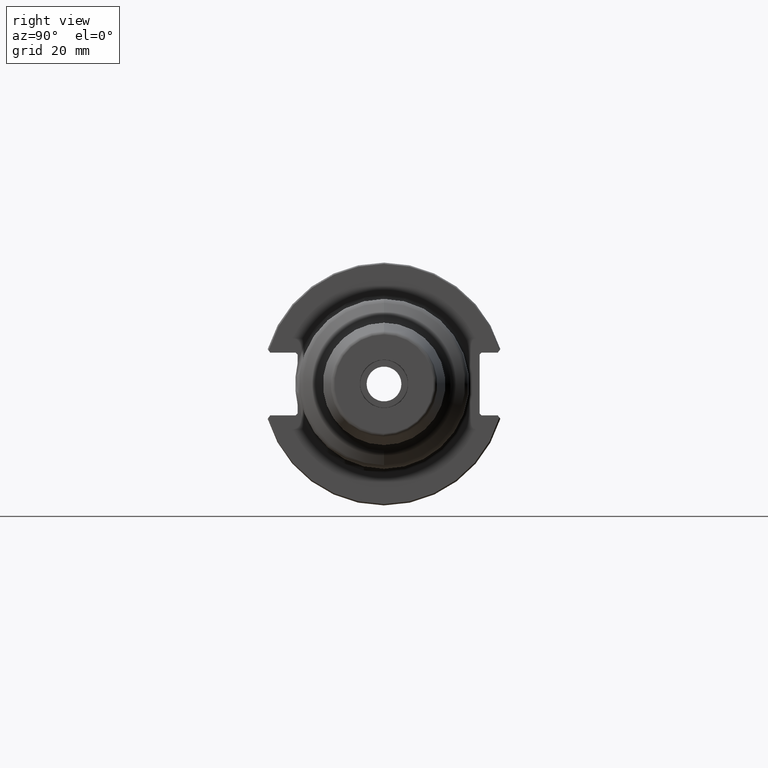
[diagram: clean part render]
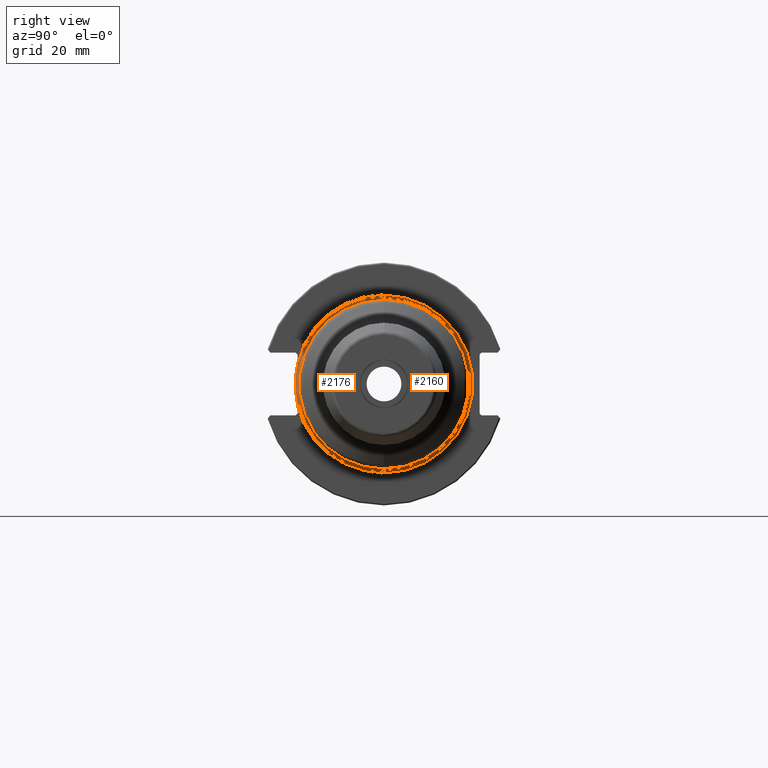
[diagram: same view with one multi-face feature highlighted, each face labeled with its STEP entity id]
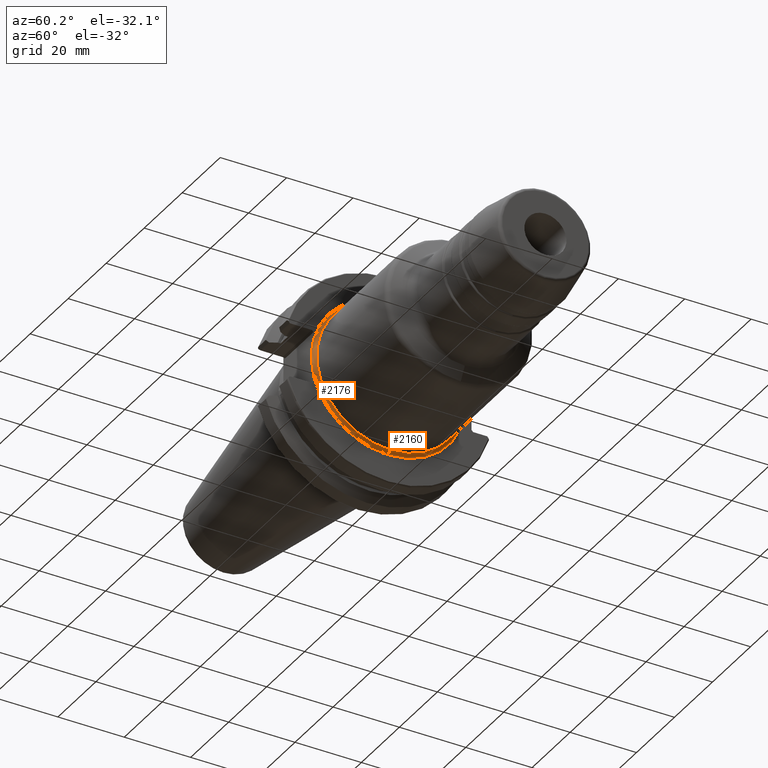
[diagram: same view with one multi-face feature highlighted, each face labeled with its STEP entity id]
A machine part, right view. The highlighted faces form ONE feature: a constant-radius fillet chain: 2 tangent blend faces with common blend radius 1 mm. The faces share edges in the B-rep.
A second angle (auxiliary view) of the same feature is appended — it is thin or edge-on in the first view.
Their STEP definitions:
[1] entity #2160 (Torus):
#202=CARTESIAN_POINT('',(1.9075E1,0.E0,0.E0));
#203=DIRECTION('',(1.E0,0.E0,0.E0));
#204=DIRECTION('',(0.E0,0.E0,-1.E0));
#205=AXIS2_PLACEMENT_3D('',#202,#203,#204);
#217=CARTESIAN_POINT('',(2.0075E1,0.E0,0.E0));
#218=DIRECTION('',(1.E0,0.E0,0.E0));
#219=DIRECTION('',(0.E0,0.E0,-1.E0));
#220=AXIS2_PLACEMENT_3D('',#217,#218,#219);
#222=CARTESIAN_POINT('',(2.0075E1,0.E0,2.3225E1));
#223=DIRECTION('',(0.E0,1.E0,0.E0));
#224=DIRECTION('',(0.E0,0.E0,-1.E0));
#225=AXIS2_PLACEMENT_3D('',#222,#223,#224);
#232=CARTESIAN_POINT('',(2.0075E1,0.E0,-2.3225E1));
#233=DIRECTION('',(0.E0,-1.E0,0.E0));
#234=DIRECTION('',(0.E0,0.E0,1.E0));
#235=AXIS2_PLACEMENT_3D('',#232,#233,#234);
#1734=CARTESIAN_POINT('',(2.0075E1,0.E0,-2.2225E1));
#1735=VERTEX_POINT('',#1734);
#1790=CARTESIAN_POINT('',(2.0075E1,0.E0,2.2225E1));
#1791=VERTEX_POINT('',#1790);
#1796=CARTESIAN_POINT('',(1.9075E1,0.E0,-2.3225E1));
#1797=CARTESIAN_POINT('',(1.9075E1,0.E0,2.3225E1));
#1798=VERTEX_POINT('',#1796);
#1799=VERTEX_POINT('',#1797);
#2146=CARTESIAN_POINT('',(2.0075E1,0.E0,0.E0));
#2147=DIRECTION('',(1.E0,0.E0,0.E0));
#2148=DIRECTION('',(0.E0,0.E0,1.E0));
#2149=AXIS2_PLACEMENT_3D('',#2146,#2147,#2148);
#2150=TOROIDAL_SURFACE('',#2149,2.3225E1,9.999999999999E-1);
#2151=ORIENTED_EDGE('',*,*,#2104,.F.);
#2153=ORIENTED_EDGE('',*,*,#2152,.F.);
#2155=ORIENTED_EDGE('',*,*,#2154,.T.);
#2157=ORIENTED_EDGE('',*,*,#2156,.T.);
#2158=EDGE_LOOP('',(#2151,#2153,#2155,#2157));
#2159=FACE_OUTER_BOUND('',#2158,.F.);
#2160=ADVANCED_FACE('',(#2159),#2150,.F.);
#206=CIRCLE('',#205,2.3225E1);
#221=CIRCLE('',#220,2.2225E1);
#226=CIRCLE('',#225,9.999999999999E-1);
#236=CIRCLE('',#235,9.999999999999E-1);
#2104=EDGE_CURVE('',#1798,#1799,#206,.T.);
#2152=EDGE_CURVE('',#1735,#1798,#236,.T.);
#2154=EDGE_CURVE('',#1735,#1791,#221,.T.);
#2156=EDGE_CURVE('',#1791,#1799,#226,.T.);
[2] entity #2176 (Torus):
#207=CARTESIAN_POINT('',(1.9075E1,0.E0,0.E0));
#208=DIRECTION('',(1.E0,0.E0,0.E0));
#209=DIRECTION('',(0.E0,0.E0,1.E0));
#210=AXIS2_PLACEMENT_3D('',#207,#208,#209);
#212=CARTESIAN_POINT('',(1.9075E1,0.E0,0.E0));
#213=DIRECTION('',(1.E0,0.E0,0.E0));
#214=DIRECTION('',(0.E0,-9.730893433800E-1,-2.304281445491E-1));
#215=AXIS2_PLACEMENT_3D('',#212,#213,#214);
#222=CARTESIAN_POINT('',(2.0075E1,0.E0,2.3225E1));
#223=DIRECTION('',(0.E0,1.E0,0.E0));
#224=DIRECTION('',(0.E0,0.E0,-1.E0));
#225=AXIS2_PLACEMENT_3D('',#222,#223,#224);
#227=CARTESIAN_POINT('',(2.0075E1,0.E0,0.E0));
#228=DIRECTION('',(-1.E0,0.E0,0.E0));
#229=DIRECTION('',(0.E0,0.E0,-1.E0));
#230=AXIS2_PLACEMENT_3D('',#227,#228,#229);
#232=CARTESIAN_POINT('',(2.0075E1,0.E0,-2.3225E1));
#233=DIRECTION('',(0.E0,-1.E0,0.E0));
#234=DIRECTION('',(0.E0,0.E0,1.E0));
#235=AXIS2_PLACEMENT_3D('',#232,#233,#234);
#847=CARTESIAN_POINT('',(1.9075E1,0.E0,0.E0));
#848=DIRECTION('',(-1.E0,0.E0,0.E0));
#849=DIRECTION('',(0.E0,-9.730893433800E-1,-2.304281445491E-1));
#850=AXIS2_PLACEMENT_3D('',#847,#848,#849);
#1734=CARTESIAN_POINT('',(2.0075E1,0.E0,-2.2225E1));
#1735=VERTEX_POINT('',#1734);
#1790=CARTESIAN_POINT('',(2.0075E1,0.E0,2.2225E1));
#1791=VERTEX_POINT('',#1790);
#1792=CARTESIAN_POINT('',(1.9075E1,-2.26E1,5.351693657153E0));
#1793=CARTESIAN_POINT('',(1.9075E1,-2.26E1,-5.351693657153E0));
#1794=VERTEX_POINT('',#1792);
#1795=VERTEX_POINT('',#1793);
#1796=CARTESIAN_POINT('',(1.9075E1,0.E0,-2.3225E1));
#1797=CARTESIAN_POINT('',(1.9075E1,0.E0,2.3225E1));
#1798=VERTEX_POINT('',#1796);
#1799=VERTEX_POINT('',#1797);
#2161=CARTESIAN_POINT('',(2.0075E1,0.E0,0.E0));
#2162=DIRECTION('',(1.E0,0.E0,0.E0));
#2163=DIRECTION('',(0.E0,0.E0,1.E0));
#2164=AXIS2_PLACEMENT_3D('',#2161,#2162,#2163);
#2165=TOROIDAL_SURFACE('',#2164,2.3225E1,9.999999999999E-1);
#2166=ORIENTED_EDGE('',*,*,#2106,.F.);
#2167=ORIENTED_EDGE('',*,*,#2156,.F.);
#2169=ORIENTED_EDGE('',*,*,#2168,.F.);
#2170=ORIENTED_EDGE('',*,*,#2152,.T.);
#2171=ORIENTED_EDGE('',*,*,#2141,.F.);
#2173=ORIENTED_EDGE('',*,*,#2172,.T.);
#2174=EDGE_LOOP('',(#2166,#2167,#2169,#2170,#2171,#2173));
#2175=FACE_OUTER_BOUND('',#2174,.F.);
#2176=ADVANCED_FACE('',(#2175),#2165,.F.);
#211=CIRCLE('',#210,2.3225E1);
#216=CIRCLE('',#215,2.3225E1);
#226=CIRCLE('',#225,9.999999999999E-1);
#231=CIRCLE('',#230,2.2225E1);
#236=CIRCLE('',#235,9.999999999999E-1);
#851=CIRCLE('',#850,2.3225E1);
#2106=EDGE_CURVE('',#1799,#1794,#211,.T.);
#2141=EDGE_CURVE('',#1795,#1798,#216,.T.);
#2152=EDGE_CURVE('',#1735,#1798,#236,.T.);
#2156=EDGE_CURVE('',#1791,#1799,#226,.T.);
#2168=EDGE_CURVE('',#1735,#1791,#231,.T.);
#2172=EDGE_CURVE('',#1795,#1794,#851,.T.);